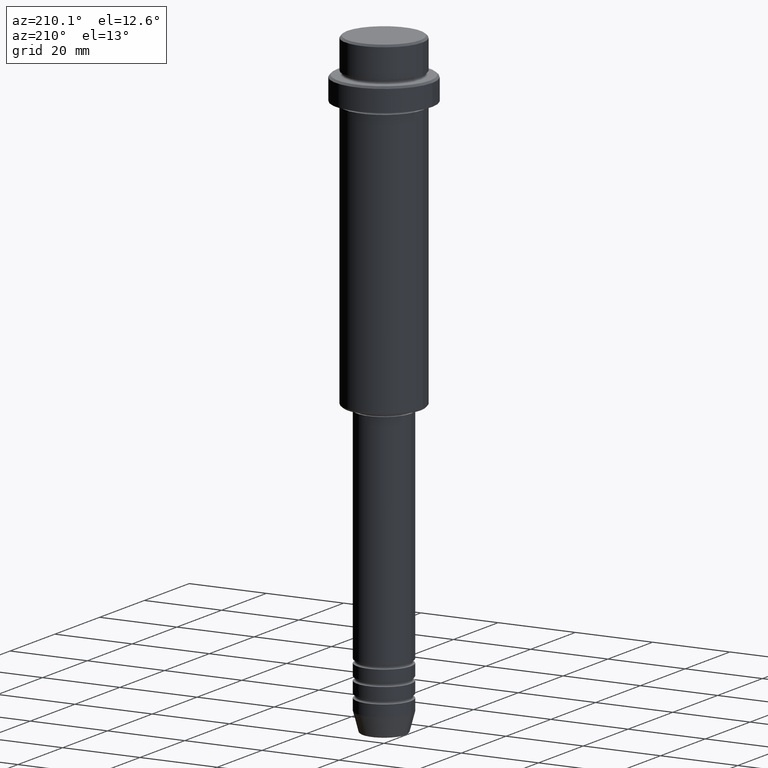
[diagram: clean part render]
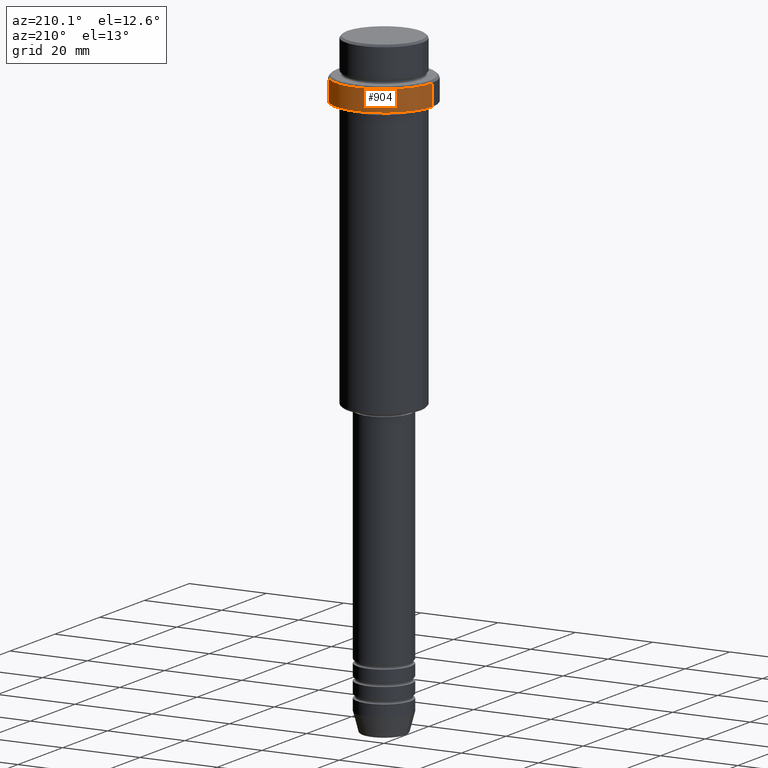
[diagram: same view with one face highlighted and labeled with its STEP entity id]
A machine part, auxiliary view. The second image highlights one B-rep face of the part: STEP entity #904.
In plain terms, the highlighted cylindrical surface (partial cylindrical patch) has radius 12.5 mm, axis along (-0, -0, 1).
Its self-contained STEP definition (entity closure, byte-faithful):
#8 = ORIENTED_EDGE ( 'NONE', *, *, #1334, .T. ) ;
#27 = DIRECTION ( 'NONE',  ( -0.000000000000000000, -0.000000000000000000, 1.000000000000000000 ) ) ;
#105 = ORIENTED_EDGE ( 'NONE', *, *, #116, .F. ) ;
#116 = EDGE_CURVE ( 'NONE', #1373, #608, #936, .T. ) ;
#139 = DIRECTION ( 'NONE',  ( -0.000000000000000000, -0.000000000000000000, 1.000000000000000000 ) ) ;
#155 = CARTESIAN_POINT ( 'NONE',  ( 12.50000000000000000, 0.000000000000000000, -15.00000000000000178 ) ) ;
#158 = VERTEX_POINT ( 'NONE', #907 ) ;
#162 = CARTESIAN_POINT ( 'NONE',  ( 0.000000000000000000, 0.000000000000000000, -9.499999999999978684 ) ) ;
#303 = ORIENTED_EDGE ( 'NONE', *, *, #1239, .T. ) ;
#409 = ORIENTED_EDGE ( 'NONE', *, *, #1200, .T. ) ;
#412 = CIRCLE ( 'NONE', #835, 12.50000000000000000 ) ;
#460 = AXIS2_PLACEMENT_3D ( 'NONE', #1348, #803, #897 ) ;
#583 = CARTESIAN_POINT ( 'NONE',  ( -12.50000000000000000, 1.530808498934191521E-15, -15.00000000000000178 ) ) ;
#597 = DIRECTION ( 'NONE',  ( 0.000000000000000000, 0.000000000000000000, -1.000000000000000000 ) ) ;
#600 = EDGE_LOOP ( 'NONE', ( #409, #303, #8, #105 ) ) ;
#608 = VERTEX_POINT ( 'NONE', #1136 ) ;
#663 = DIRECTION ( 'NONE',  ( 1.000000000000000000, 0.000000000000000000, 0.000000000000000000 ) ) ;
#687 = AXIS2_PLACEMENT_3D ( 'NONE', #162, #597, #920 ) ;
#784 = CARTESIAN_POINT ( 'NONE',  ( -12.50000000000000000, 1.530808498934191521E-15, 0.000000000000000000 ) ) ;
#787 = CYLINDRICAL_SURFACE ( 'NONE', #460, 12.50000000000000000 ) ;
#803 = DIRECTION ( 'NONE',  ( -0.000000000000000000, -0.000000000000000000, 1.000000000000000000 ) ) ;
#819 = DIRECTION ( 'NONE',  ( -0.000000000000000000, -0.000000000000000000, 1.000000000000000000 ) ) ;
#822 = FACE_OUTER_BOUND ( 'NONE', #600, .T. ) ;
#835 = AXIS2_PLACEMENT_3D ( 'NONE', #1104, #139, #663 ) ;
#897 = DIRECTION ( 'NONE',  ( 1.000000000000000000, 0.000000000000000000, 0.000000000000000000 ) ) ;
#904 = ADVANCED_FACE ( 'NONE', ( #822 ), #787, .T. ) ;
#907 = CARTESIAN_POINT ( 'NONE',  ( -12.50000000000000000, 1.530808498934191521E-15, -9.499999999999978684 ) ) ;
#920 = DIRECTION ( 'NONE',  ( 1.000000000000000000, 0.000000000000000000, 0.000000000000000000 ) ) ;
#936 = LINE ( 'NONE', #1364, #1058 ) ;
#1005 = LINE ( 'NONE', #784, #1267 ) ;
#1058 = VECTOR ( 'NONE', #819, 1000.000000000000000 ) ;
#1104 = CARTESIAN_POINT ( 'NONE',  ( 0.000000000000000000, 0.000000000000000000, -15.00000000000000178 ) ) ;
#1136 = CARTESIAN_POINT ( 'NONE',  ( 12.50000000000000000, 0.000000000000000000, -9.499999999999978684 ) ) ;
#1200 = EDGE_CURVE ( 'NONE', #1373, #1414, #412, .T. ) ;
#1239 = EDGE_CURVE ( 'NONE', #1414, #158, #1005, .T. ) ;
#1267 = VECTOR ( 'NONE', #27, 1000.000000000000000 ) ;
#1334 = EDGE_CURVE ( 'NONE', #158, #608, #1410, .T. ) ;
#1348 = CARTESIAN_POINT ( 'NONE',  ( 0.000000000000000000, 0.000000000000000000, 0.000000000000000000 ) ) ;
#1364 = CARTESIAN_POINT ( 'NONE',  ( 12.50000000000000000, 0.000000000000000000, 0.000000000000000000 ) ) ;
#1373 = VERTEX_POINT ( 'NONE', #155 ) ;
#1410 = CIRCLE ( 'NONE', #687, 12.50000000000000000 ) ;
#1414 = VERTEX_POINT ( 'NONE', #583 ) ;